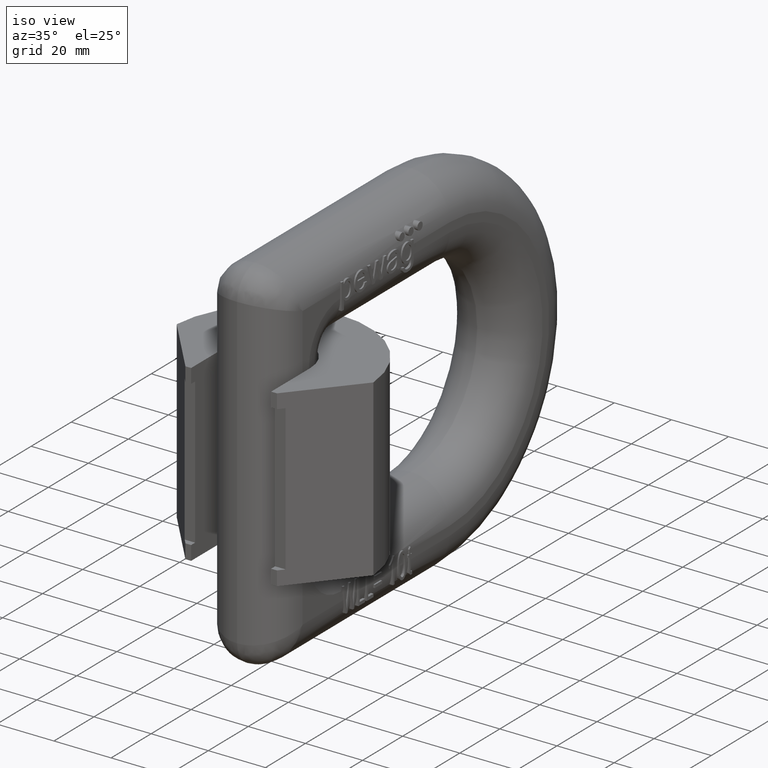
[diagram: clean part render]
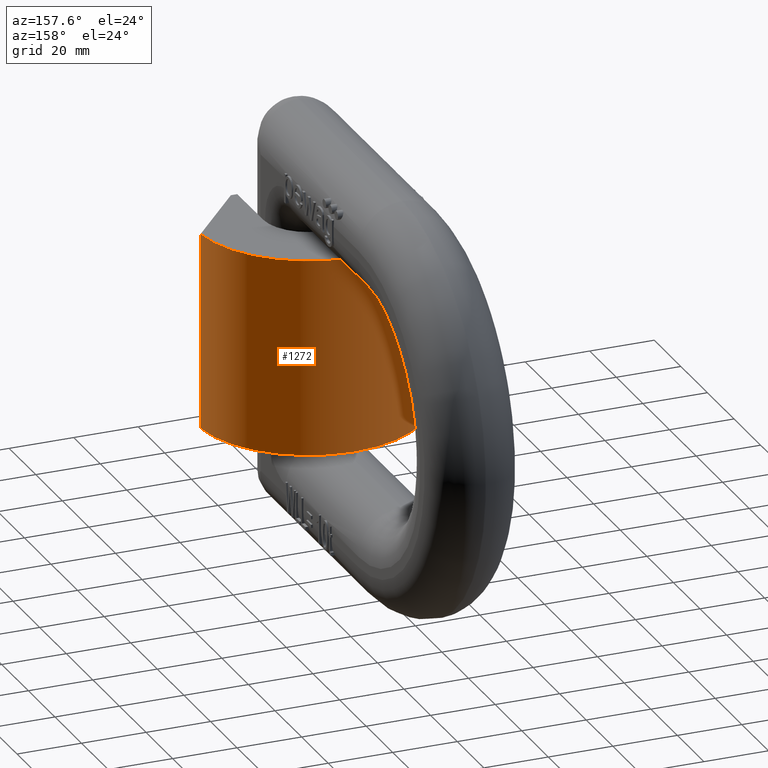
[diagram: tour spotlight — one face highlighted and labeled with its STEP entity id]
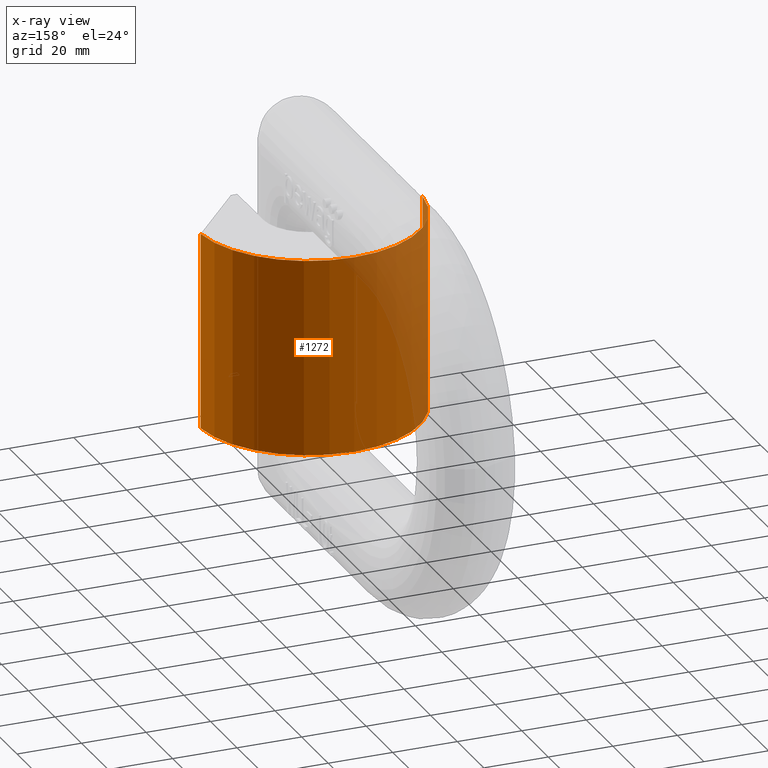
[diagram: x-ray of the same camera — body ghosted, this tour face saturated]
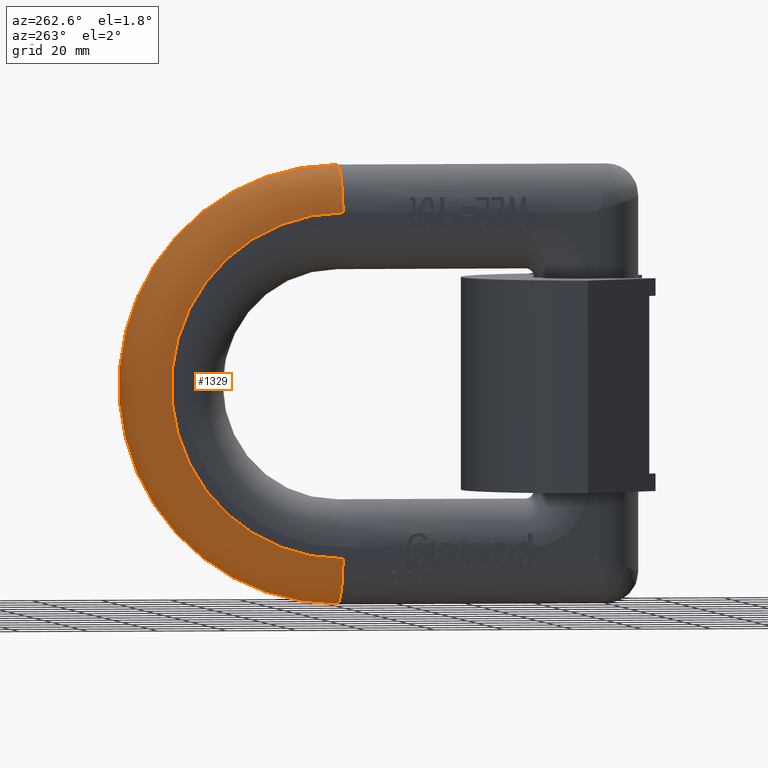
[diagram: tour spotlight — one face highlighted and labeled with its STEP entity id]
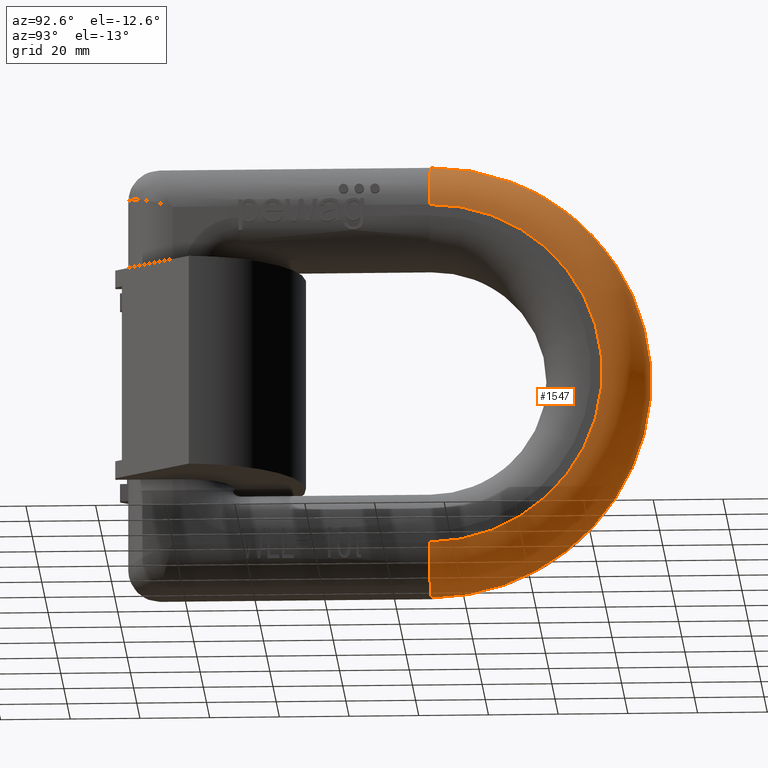
[diagram: tour spotlight — one face highlighted and labeled with its STEP entity id]
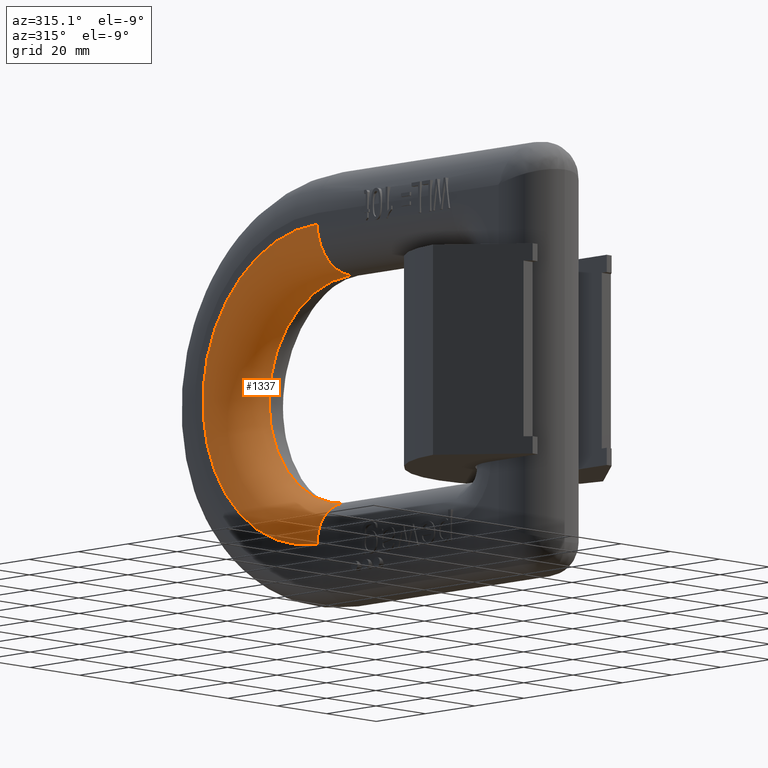
[diagram: tour spotlight — one face highlighted and labeled with its STEP entity id]
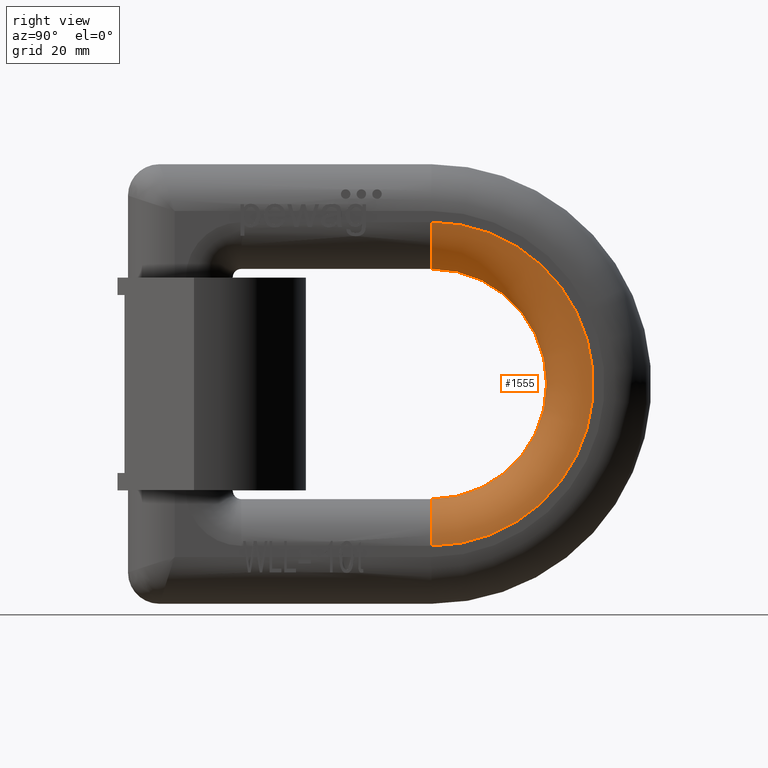
[diagram: tour spotlight — one face highlighted and labeled with its STEP entity id]
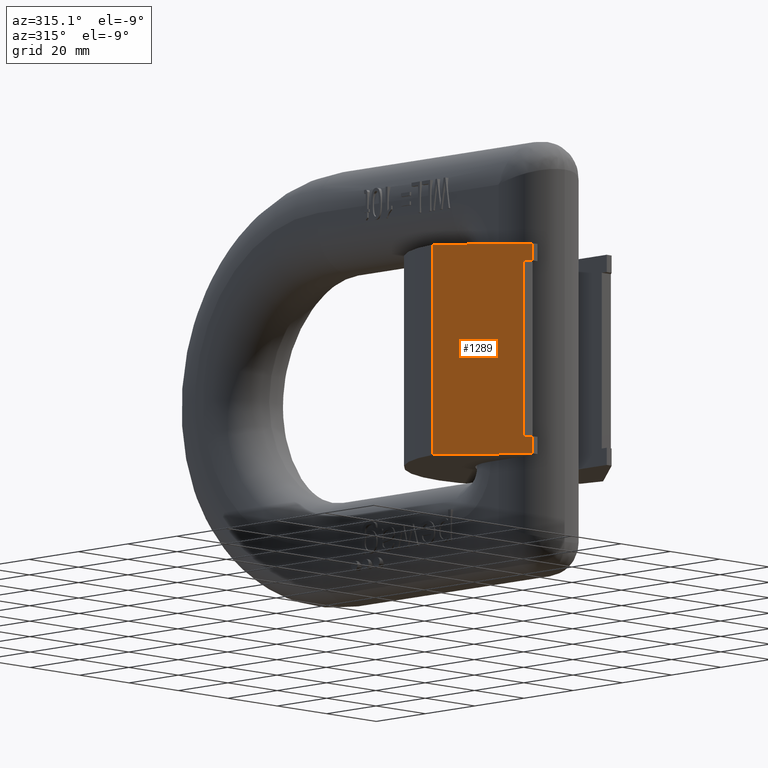
[diagram: tour spotlight — one face highlighted and labeled with its STEP entity id]
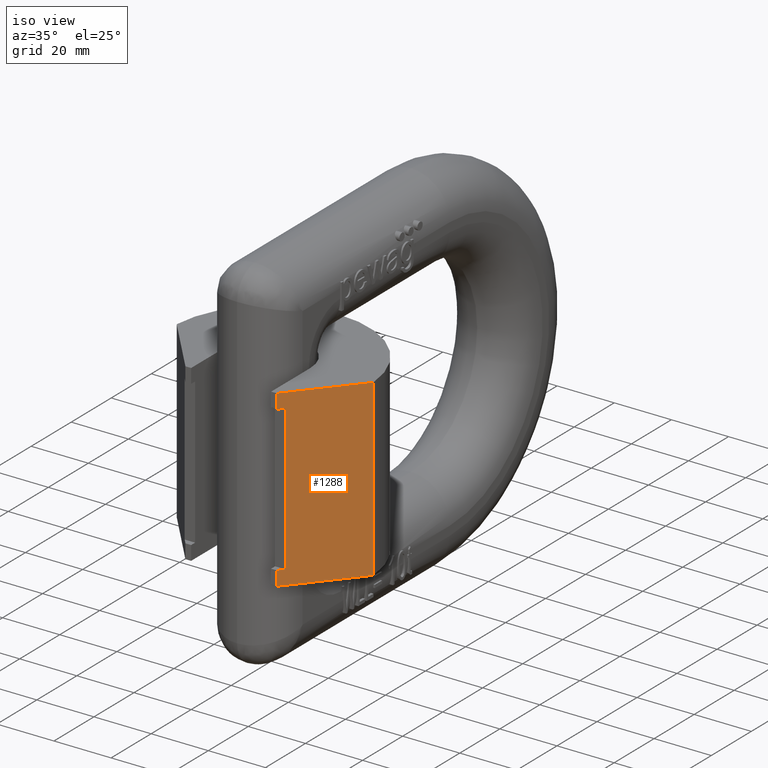
[diagram: tour spotlight — one face highlighted and labeled with its STEP entity id]
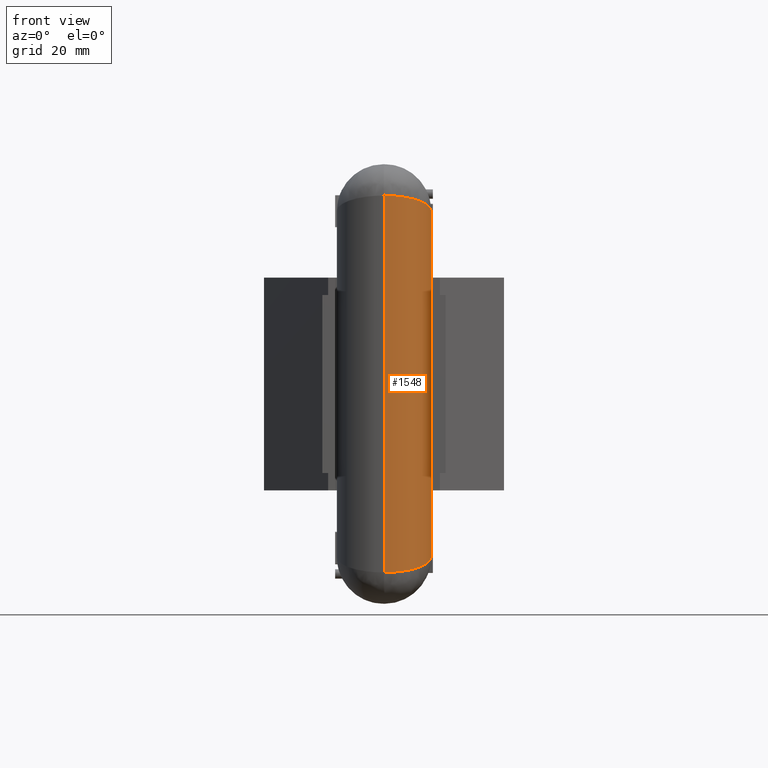
[diagram: tour spotlight — one face highlighted and labeled with its STEP entity id]
A machine part: a face-by-face anatomy tour. The part has 466 B-rep faces; the first image is the clean iso view, then the 8 largest visible faces are spotlighted one at a time (largest first), each with its STEP entity span.

Face 1 — auxiliary view, entity #1272. An x-ray twin of the same camera follows (body ghosted, this face saturated) — the face is partly hidden behind the body. In plain terms, the highlighted cylindrical surface (partial cylindrical patch) has radius 34.5 mm, axis along (0, 0, -1).
Definition (entity closure, byte-faithful):
#1272=ADVANCED_FACE('',(#1794),#1738,.T.);
#1738=CYLINDRICAL_SURFACE('',#8911,34.5);
#1794=FACE_OUTER_BOUND('',#2238,.T.);
#2238=EDGE_LOOP('',(#2818,#2819,#2820,#2821));
#2730=CIRCLE('',#8909,34.5);
#2731=CIRCLE('',#8910,34.5);
#2818=ORIENTED_EDGE('',*,*,#6274,.F.);
#2819=ORIENTED_EDGE('',*,*,#6275,.F.);
#2820=ORIENTED_EDGE('',*,*,#6276,.F.);
#2821=ORIENTED_EDGE('',*,*,#6277,.T.);
#5414=VERTEX_POINT('',#11025);
#5415=VERTEX_POINT('',#11026);
#5416=VERTEX_POINT('',#11028);
#5417=VERTEX_POINT('',#11030);
#6274=EDGE_CURVE('',#5414,#5415,#7572,.T.);
#6275=EDGE_CURVE('',#5416,#5414,#2730,.T.);
#6276=EDGE_CURVE('',#5417,#5416,#7573,.T.);
#6277=EDGE_CURVE('',#5417,#5415,#2731,.T.);
#7572=LINE('',#11024,#8164);
#7573=LINE('',#11029,#8165);
#8164=VECTOR('',#9367,1.);
#8165=VECTOR('',#9370,1.);
#8909=AXIS2_PLACEMENT_3D('',#11027,#9368,#9369);
#8910=AXIS2_PLACEMENT_3D('',#11031,#9371,#9372);
#8911=AXIS2_PLACEMENT_3D('',#11032,#9373,#9374);
#9367=DIRECTION('',(0.,0.,-1.));
#9368=DIRECTION('',(0.,0.,1.));
#9369=DIRECTION('',(1.,0.,0.));
#9370=DIRECTION('',(0.,0.,1.));
#9371=DIRECTION('',(0.,0.,1.));
#9372=DIRECTION('',(1.,0.,0.));
#9373=DIRECTION('',(0.,0.,-1.));
#9374=DIRECTION('',(-1.,0.,0.));
#11024=CARTESIAN_POINT('',(-34.4133144403458,21.9441336358489,30.5));
#11025=CARTESIAN_POINT('',(-34.4133144403458,21.9441336358489,30.5));
#11026=CARTESIAN_POINT('',(-34.4133144403458,21.9441336358489,-30.5));
#11027=CARTESIAN_POINT('',(0.,19.5,30.5));
#11028=CARTESIAN_POINT('',(34.4133144403458,21.9441336358489,30.5));
#11029=CARTESIAN_POINT('',(34.4133144403458,21.9441336358489,30.5));
#11030=CARTESIAN_POINT('',(34.4133144403458,21.9441336358489,-30.5));
#11031=CARTESIAN_POINT('',(0.,19.5,-30.5));
#11032=CARTESIAN_POINT('',(0.,19.5,30.5));

Face 2 — auxiliary view, entity #1329. In plain terms, the highlighted toroidal blend (fillet) surface has major radius 49.6 mm and minor (blend) radius 13.4 mm.
Definition (entity closure, byte-faithful):
#175=TOROIDAL_SURFACE('',#9024,49.6,13.4);
#1329=ADVANCED_FACE('',(#1849),#175,.T.);
#1849=FACE_OUTER_BOUND('',#2299,.T.);
#2299=EDGE_LOOP('',(#3213,#3214,#3215,#3216));
#2741=CIRCLE('',#8946,63.);
#2757=CIRCLE('',#8986,49.6);
#2762=CIRCLE('',#8998,13.4);
#2766=CIRCLE('',#9023,13.4);
#3213=ORIENTED_EDGE('',*,*,#6496,.T.);
#3214=ORIENTED_EDGE('',*,*,#6454,.F.);
#3215=ORIENTED_EDGE('',*,*,#6575,.F.);
#3216=ORIENTED_EDGE('',*,*,#6350,.F.);
#5465=VERTEX_POINT('',#11173);
#5467=VERTEX_POINT('',#11179);
#5554=VERTEX_POINT('',#11504);
#5555=VERTEX_POINT('',#11506);
#6350=EDGE_CURVE('',#5467,#5465,#2741,.T.);
#6454=EDGE_CURVE('',#5554,#5555,#2757,.T.);
#6496=EDGE_CURVE('',#5467,#5555,#2762,.T.);
#6575=EDGE_CURVE('',#5465,#5554,#2766,.T.);
#8946=AXIS2_PLACEMENT_3D('',#11180,#9506,#9507);
#8986=AXIS2_PLACEMENT_3D('',#11505,#9645,#9646);
#8998=AXIS2_PLACEMENT_3D('',#11787,#9682,#9683);
#9023=AXIS2_PLACEMENT_3D('',#12412,#9756,#9757);
#9024=AXIS2_PLACEMENT_3D('',#12413,#9758,#9759);
#9506=DIRECTION('',(1.,0.,0.));
#9507=DIRECTION('',(0.,0.,1.));
#9645=DIRECTION('',(-1.,0.,0.));
#9646=DIRECTION('',(0.,0.,1.));
#9682=DIRECTION('',(0.,1.,0.));
#9683=DIRECTION('',(0.,0.,1.));
#9756=DIRECTION('',(0.,-1.,0.));
#9757=DIRECTION('',(0.,0.,-1.));
#9758=DIRECTION('',(-1.,0.,0.));
#9759=DIRECTION('',(0.,0.,1.));
#11173=CARTESIAN_POINT('',(-0.0999999999999994,90.,63.));
#11179=CARTESIAN_POINT('',(-0.0999999999999994,90.,-63.));
#11180=CARTESIAN_POINT('',(-0.0999999999999994,90.,0.));
#11504=CARTESIAN_POINT('',(-13.5,90.,49.6));
#11505=CARTESIAN_POINT('',(-13.5,90.,0.));
#11506=CARTESIAN_POINT('',(-13.5,90.,-49.6));
#11787=CARTESIAN_POINT('',(-0.0999999999999994,90.,-49.6));
#12412=CARTESIAN_POINT('',(-0.0999999999999994,90.,49.6));
#12413=CARTESIAN_POINT('',(-0.0999999999999994,90.,0.));

Face 3 — auxiliary view, entity #1547. In plain terms, the highlighted toroidal blend (fillet) surface has major radius 49.6 mm and minor (blend) radius 13.4 mm.
Definition (entity closure, byte-faithful):
#179=TOROIDAL_SURFACE('',#9229,49.6,13.4);
#1547=ADVANCED_FACE('',(#2056),#179,.T.);
#2056=FACE_OUTER_BOUND('',#2530,.T.);
#2530=EDGE_LOOP('',(#4439,#4440,#4441,#4442));
#2740=CIRCLE('',#8945,63.);
#2793=CIRCLE('',#9191,49.6);
#2798=CIRCLE('',#9203,13.4);
#2802=CIRCLE('',#9228,13.4);
#4439=ORIENTED_EDGE('',*,*,#7103,.T.);
#4440=ORIENTED_EDGE('',*,*,#7061,.F.);
#4441=ORIENTED_EDGE('',*,*,#7182,.F.);
#4442=ORIENTED_EDGE('',*,*,#6348,.F.);
#5464=VERTEX_POINT('',#11171);
#5466=VERTEX_POINT('',#11177);
#5956=VERTEX_POINT('',#14893);
#5957=VERTEX_POINT('',#14895);
#6348=EDGE_CURVE('',#5464,#5466,#2740,.T.);
#7061=EDGE_CURVE('',#5956,#5957,#2793,.T.);
#7103=EDGE_CURVE('',#5464,#5957,#2798,.T.);
#7182=EDGE_CURVE('',#5466,#5956,#2802,.T.);
#8945=AXIS2_PLACEMENT_3D('',#11176,#9503,#9504);
#9191=AXIS2_PLACEMENT_3D('',#14894,#10393,#10394);
#9203=AXIS2_PLACEMENT_3D('',#15176,#10430,#10431);
#9228=AXIS2_PLACEMENT_3D('',#15801,#10504,#10505);
#9229=AXIS2_PLACEMENT_3D('',#15802,#10506,#10507);
#9503=DIRECTION('',(-1.,0.,-2.34291072916505E-15));
#9504=DIRECTION('',(2.34286624217056E-15,0.,-1.));
#10393=DIRECTION('',(1.,0.,2.34291072916505E-15));
#10394=DIRECTION('',(2.34327566311383E-15,0.,-1.));
#10430=DIRECTION('',(0.,1.,0.));
#10431=DIRECTION('',(2.3433735388516E-15,0.,-1.));
#10504=DIRECTION('',(0.,-1.,0.));
#10505=DIRECTION('',(-2.3433735388516E-15,0.,1.));
#10506=DIRECTION('',(1.,0.,2.34291072916505E-15));
#10507=DIRECTION('',(2.34286624217056E-15,0.,-1.));
#11171=CARTESIAN_POINT('',(0.0999999999998518,90.,63.));
#11176=CARTESIAN_POINT('',(0.0999999999999994,90.,2.34291072916503E-16));
#11177=CARTESIAN_POINT('',(0.100000000000147,90.,-63.));
#14893=CARTESIAN_POINT('',(13.5000000000001,90.,-49.6));
#14894=CARTESIAN_POINT('',(13.5,90.,3.16292948437282E-14));
#14895=CARTESIAN_POINT('',(13.4999999999999,90.,49.6));
#15176=CARTESIAN_POINT('',(0.0999999999998832,90.,49.6));
#15801=CARTESIAN_POINT('',(0.100000000000116,90.,-49.6));
#15802=CARTESIAN_POINT('',(0.0999999999999994,90.,2.34291072916503E-16));

Face 4 — auxiliary view, entity #1337. In plain terms, the highlighted toroidal blend (fillet) surface has major radius 46.4 mm and minor (blend) radius 13.4 mm.
Definition (entity closure, byte-faithful):
#178=TOROIDAL_SURFACE('',#9050,46.4,13.4);
#1337=ADVANCED_FACE('',(#1856),#178,.T.);
#1856=FACE_OUTER_BOUND('',#2308,.T.);
#2308=EDGE_LOOP('',(#3287,#3288,#3289,#3290));
#2737=CIRCLE('',#8937,33.);
#2755=CIRCLE('',#8974,13.4);
#2758=CIRCLE('',#8987,46.4);
#2764=CIRCLE('',#9003,13.4);
#3287=ORIENTED_EDGE('',*,*,#6505,.T.);
#3288=ORIENTED_EDGE('',*,*,#6334,.F.);
#3289=ORIENTED_EDGE('',*,*,#6410,.T.);
#3290=ORIENTED_EDGE('',*,*,#6458,.F.);
#5453=VERTEX_POINT('',#11140);
#5455=VERTEX_POINT('',#11146);
#5518=VERTEX_POINT('',#11345);
#5558=VERTEX_POINT('',#11519);
#6334=EDGE_CURVE('',#5455,#5453,#2737,.T.);
#6410=EDGE_CURVE('',#5455,#5518,#2755,.T.);
#6458=EDGE_CURVE('',#5558,#5518,#2758,.T.);
#6505=EDGE_CURVE('',#5558,#5453,#2764,.T.);
#8937=AXIS2_PLACEMENT_3D('',#11147,#9476,#9477);
#8974=AXIS2_PLACEMENT_3D('',#11346,#9594,#9595);
#8987=AXIS2_PLACEMENT_3D('',#11520,#9649,#9650);
#9003=AXIS2_PLACEMENT_3D('',#11940,#9694,#9695);
#9050=AXIS2_PLACEMENT_3D('',#12665,#9819,#9820);
#9476=DIRECTION('',(-1.,0.,0.));
#9477=DIRECTION('',(0.,0.,1.));
#9594=DIRECTION('',(0.,1.,0.));
#9595=DIRECTION('',(0.,0.,1.));
#9649=DIRECTION('',(1.,0.,0.));
#9650=DIRECTION('',(0.,0.,1.));
#9694=DIRECTION('',(0.,1.,0.));
#9695=DIRECTION('',(0.,0.,1.));
#9819=DIRECTION('',(-1.,0.,0.));
#9820=DIRECTION('',(0.,0.,1.));
#11140=CARTESIAN_POINT('',(-0.0999999999999994,90.,-33.));
#11146=CARTESIAN_POINT('',(-0.0999999999999994,90.,33.));
#11147=CARTESIAN_POINT('',(-0.0999999999999994,90.,0.));
#11345=CARTESIAN_POINT('',(-13.5,90.,46.4));
#11346=CARTESIAN_POINT('',(-0.0999999999999994,90.,46.4));
#11519=CARTESIAN_POINT('',(-13.5,90.,-46.4));
#11520=CARTESIAN_POINT('',(-13.5,90.,0.));
#11940=CARTESIAN_POINT('',(-0.0999999999999994,90.,-46.4));
#12665=CARTESIAN_POINT('',(-0.0999999999999994,90.,0.));

Face 5 — right view, entity #1555. In plain terms, the highlighted toroidal blend (fillet) surface has major radius 46.4 mm and minor (blend) radius 13.4 mm.
Definition (entity closure, byte-faithful):
#182=TOROIDAL_SURFACE('',#9255,46.4,13.4);
#1555=ADVANCED_FACE('',(#2063),#182,.T.);
#2063=FACE_OUTER_BOUND('',#2539,.T.);
#2539=EDGE_LOOP('',(#4513,#4514,#4515,#4516));
#2736=CIRCLE('',#8936,33.);
#2791=CIRCLE('',#9179,13.4);
#2794=CIRCLE('',#9192,46.4);
#2800=CIRCLE('',#9208,13.4);
#4513=ORIENTED_EDGE('',*,*,#7112,.T.);
#4514=ORIENTED_EDGE('',*,*,#6332,.F.);
#4515=ORIENTED_EDGE('',*,*,#7017,.T.);
#4516=ORIENTED_EDGE('',*,*,#7065,.F.);
#5452=VERTEX_POINT('',#11138);
#5454=VERTEX_POINT('',#11144);
#5920=VERTEX_POINT('',#14734);
#5960=VERTEX_POINT('',#14908);
#6332=EDGE_CURVE('',#5452,#5454,#2736,.T.);
#7017=EDGE_CURVE('',#5452,#5920,#2791,.T.);
#7065=EDGE_CURVE('',#5960,#5920,#2794,.T.);
#7112=EDGE_CURVE('',#5960,#5454,#2800,.T.);
#8936=AXIS2_PLACEMENT_3D('',#11143,#9473,#9474);
#9179=AXIS2_PLACEMENT_3D('',#14735,#10342,#10343);
#9192=AXIS2_PLACEMENT_3D('',#14909,#10397,#10398);
#9208=AXIS2_PLACEMENT_3D('',#15329,#10442,#10443);
#9255=AXIS2_PLACEMENT_3D('',#16054,#10567,#10568);
#9473=DIRECTION('',(1.,0.,2.34291072916505E-15));
#9474=DIRECTION('',(2.34294446743553E-15,0.,-1.));
#10342=DIRECTION('',(0.,1.,0.));
#10343=DIRECTION('',(2.3433735388516E-15,0.,-1.));
#10397=DIRECTION('',(-1.,0.,-2.34291072916505E-15));
#10398=DIRECTION('',(2.35533575402023E-15,0.,-1.));
#10442=DIRECTION('',(0.,1.,0.));
#10443=DIRECTION('',(2.3433735388516E-15,0.,-1.));
#10567=DIRECTION('',(1.,0.,2.34291072916505E-15));
#10568=DIRECTION('',(2.34291012942206E-15,0.,-1.));
#11138=CARTESIAN_POINT('',(0.100000000000077,90.,-33.));
#11143=CARTESIAN_POINT('',(0.0999999999999994,90.,2.34291072916503E-16));
#11144=CARTESIAN_POINT('',(0.0999999999999221,90.,33.));
#14734=CARTESIAN_POINT('',(13.5000000000001,90.,-46.4));
#14735=CARTESIAN_POINT('',(0.100000000000108,90.,-46.4));
#14908=CARTESIAN_POINT('',(13.4999999999999,90.,46.4));
#14909=CARTESIAN_POINT('',(13.5,90.,3.16292948437282E-14));
#15329=CARTESIAN_POINT('',(0.0999999999998907,90.,46.4));
#16054=CARTESIAN_POINT('',(0.0999999999999994,90.,2.34291072916503E-16));

Face 6 — auxiliary view, entity #1289. In plain terms, the highlighted planar face has unit normal (-0.766, -0.6428, 0).
Definition (entity closure, byte-faithful):
#1041=PLANE('',#8930);
#1289=ADVANCED_FACE('',(#1811),#1041,.T.);
#1811=FACE_OUTER_BOUND('',#2255,.T.);
#2255=EDGE_LOOP('',(#2906,#2907,#2908,#2909,#2910,#2911,#2912,#2913));
#2906=ORIENTED_EDGE('',*,*,#6278,.T.);
#2907=ORIENTED_EDGE('',*,*,#6274,.T.);
#2908=ORIENTED_EDGE('',*,*,#6286,.F.);
#2909=ORIENTED_EDGE('',*,*,#6316,.F.);
#2910=ORIENTED_EDGE('',*,*,#6299,.F.);
#2911=ORIENTED_EDGE('',*,*,#6293,.F.);
#2912=ORIENTED_EDGE('',*,*,#6296,.T.);
#2913=ORIENTED_EDGE('',*,*,#6318,.F.);
#5414=VERTEX_POINT('',#11025);
#5415=VERTEX_POINT('',#11026);
#5418=VERTEX_POINT('',#11034);
#5424=VERTEX_POINT('',#11048);
#5430=VERTEX_POINT('',#11062);
#5432=VERTEX_POINT('',#11065);
#5434=VERTEX_POINT('',#11071);
#5436=VERTEX_POINT('',#11077);
#6274=EDGE_CURVE('',#5414,#5415,#7572,.T.);
#6278=EDGE_CURVE('',#5418,#5414,#7574,.T.);
#6286=EDGE_CURVE('',#5424,#5415,#7581,.T.);
#6293=EDGE_CURVE('',#5430,#5432,#7587,.T.);
#6296=EDGE_CURVE('',#5430,#5434,#7590,.T.);
#6299=EDGE_CURVE('',#5432,#5436,#7593,.T.);
#6316=EDGE_CURVE('',#5436,#5424,#7610,.T.);
#6318=EDGE_CURVE('',#5418,#5434,#7612,.T.);
#7572=LINE('',#11024,#8164);
#7574=LINE('',#11033,#8166);
#7581=LINE('',#11050,#8173);
#7587=LINE('',#11064,#8179);
#7590=LINE('',#11070,#8182);
#7593=LINE('',#11076,#8185);
#7610=LINE('',#11109,#8202);
#7612=LINE('',#11112,#8204);
#8164=VECTOR('',#9367,1.);
#8166=VECTOR('',#9375,1.);
#8173=VECTOR('',#9386,1.);
#8179=VECTOR('',#9396,1.);
#8182=VECTOR('',#9401,1.);
#8185=VECTOR('',#9406,1.);
#8202=VECTOR('',#9435,1.);
#8204=VECTOR('',#9439,1.);
#8930=AXIS2_PLACEMENT_3D('',#11121,#9453,#9454);
#9367=DIRECTION('',(0.,0.,-1.));
#9375=DIRECTION('',(-0.64278760968654,0.766044443118978,0.));
#9386=DIRECTION('',(-0.64278760968654,0.766044443118978,0.));
#9396=DIRECTION('',(0.,0.,-1.));
#9401=DIRECTION('',(0.64278760968654,-0.766044443118978,0.));
#9406=DIRECTION('',(0.64278760968654,-0.766044443118978,0.));
#9435=DIRECTION('',(0.,0.,-1.));
#9439=DIRECTION('',(0.,0.,-1.));
#9453=DIRECTION('',(-0.766044443118978,-0.64278760968654,0.));
#9454=DIRECTION('',(0.64278760968654,-0.766044443118978,0.));
#11024=CARTESIAN_POINT('',(-34.4133144403458,21.9441336358489,30.5));
#11025=CARTESIAN_POINT('',(-34.4133144403458,21.9441336358489,30.5));
#11026=CARTESIAN_POINT('',(-34.4133144403458,21.9441336358489,-30.5));
#11033=CARTESIAN_POINT('',(-18.9910610132045,3.5646077081549,30.5));
#11034=CARTESIAN_POINT('',(-16.,1.54074395550979E-30,30.5));
#11048=CARTESIAN_POINT('',(-16.,1.54074395550979E-30,-30.5));
#11050=CARTESIAN_POINT('',(-18.9910610132045,3.5646077081549,-30.5));
#11062=CARTESIAN_POINT('',(-17.6781992623545,1.99999999999998,25.5));
#11064=CARTESIAN_POINT('',(-17.6781992623545,1.99999999999998,25.5));
#11065=CARTESIAN_POINT('',(-17.6781992623546,1.99999999999998,-25.5));
#11070=CARTESIAN_POINT('',(-9.38918542133544,-7.87846202409767,25.5));
#11071=CARTESIAN_POINT('',(-16.,1.54074395550979E-30,25.5));
#11076=CARTESIAN_POINT('',(-9.38918542133544,-7.87846202409767,-25.5));
#11077=CARTESIAN_POINT('',(-16.,-1.4717857671533E-17,-25.5));
#11109=CARTESIAN_POINT('',(-16.,1.54074395550979E-30,33.5500275));
#11112=CARTESIAN_POINT('',(-16.,1.54074395550979E-30,33.5500275));
#11121=CARTESIAN_POINT('',(-16.,0.,33.5500275));

Face 7 — iso view, entity #1288. In plain terms, the highlighted planar face has unit normal (0.766, -0.6428, 0).
Definition (entity closure, byte-faithful):
#1040=PLANE('',#8929);
#1288=ADVANCED_FACE('',(#1810),#1040,.T.);
#1810=FACE_OUTER_BOUND('',#2254,.T.);
#2254=EDGE_LOOP('',(#2898,#2899,#2900,#2901,#2902,#2903,#2904,#2905));
#2898=ORIENTED_EDGE('',*,*,#6284,.T.);
#2899=ORIENTED_EDGE('',*,*,#6305,.T.);
#2900=ORIENTED_EDGE('',*,*,#6311,.T.);
#2901=ORIENTED_EDGE('',*,*,#6314,.F.);
#2902=ORIENTED_EDGE('',*,*,#6308,.F.);
#2903=ORIENTED_EDGE('',*,*,#6302,.T.);
#2904=ORIENTED_EDGE('',*,*,#6287,.F.);
#2905=ORIENTED_EDGE('',*,*,#6276,.T.);
#5416=VERTEX_POINT('',#11028);
#5417=VERTEX_POINT('',#11030);
#5423=VERTEX_POINT('',#11044);
#5426=VERTEX_POINT('',#11052);
#5438=VERTEX_POINT('',#11083);
#5440=VERTEX_POINT('',#11089);
#5442=VERTEX_POINT('',#11095);
#5444=VERTEX_POINT('',#11101);
#6276=EDGE_CURVE('',#5417,#5416,#7573,.T.);
#6284=EDGE_CURVE('',#5416,#5423,#7579,.T.);
#6287=EDGE_CURVE('',#5417,#5426,#7582,.T.);
#6302=EDGE_CURVE('',#5438,#5426,#7596,.T.);
#6305=EDGE_CURVE('',#5423,#5440,#7599,.T.);
#6308=EDGE_CURVE('',#5438,#5442,#7602,.T.);
#6311=EDGE_CURVE('',#5440,#5444,#7605,.T.);
#6314=EDGE_CURVE('',#5442,#5444,#7608,.T.);
#7573=LINE('',#11029,#8165);
#7579=LINE('',#11045,#8171);
#7582=LINE('',#11051,#8174);
#7596=LINE('',#11082,#8188);
#7599=LINE('',#11088,#8191);
#7602=LINE('',#11094,#8194);
#7605=LINE('',#11100,#8197);
#7608=LINE('',#11106,#8200);
#8165=VECTOR('',#9370,1.);
#8171=VECTOR('',#9382,1.);
#8174=VECTOR('',#9387,1.);
#8188=VECTOR('',#9411,1.);
#8191=VECTOR('',#9416,1.);
#8194=VECTOR('',#9421,1.);
#8197=VECTOR('',#9426,1.);
#8200=VECTOR('',#9431,1.);
#8929=AXIS2_PLACEMENT_3D('',#11120,#9451,#9452);
#9370=DIRECTION('',(0.,0.,1.));
#9382=DIRECTION('',(-0.64278760968654,-0.766044443118978,0.));
#9387=DIRECTION('',(-0.64278760968654,-0.766044443118978,0.));
#9411=DIRECTION('',(0.,0.,-1.));
#9416=DIRECTION('',(0.,0.,-1.));
#9421=DIRECTION('',(0.64278760968654,0.766044443118978,0.));
#9426=DIRECTION('',(0.64278760968654,0.766044443118978,0.));
#9431=DIRECTION('',(0.,0.,1.));
#9451=DIRECTION('',(0.766044443118978,-0.64278760968654,0.));
#9452=DIRECTION('',(0.64278760968654,0.766044443118978,0.));
#11028=CARTESIAN_POINT('',(34.4133144403458,21.9441336358489,30.5));
#11029=CARTESIAN_POINT('',(34.4133144403458,21.9441336358489,30.5));
#11030=CARTESIAN_POINT('',(34.4133144403458,21.9441336358489,-30.5));
#11044=CARTESIAN_POINT('',(16.,0.,30.5));
#11045=CARTESIAN_POINT('',(18.9910610132045,3.5646077081549,30.5));
#11051=CARTESIAN_POINT('',(18.9910610132045,3.5646077081549,-30.5));
#11052=CARTESIAN_POINT('',(16.,0.,-30.5));
#11082=CARTESIAN_POINT('',(16.,0.,33.5500275));
#11083=CARTESIAN_POINT('',(16.,0.,-25.5));
#11088=CARTESIAN_POINT('',(16.,0.,33.5500275));
#11089=CARTESIAN_POINT('',(16.,0.,25.5));
#11094=CARTESIAN_POINT('',(9.38918542133544,-7.87846202409767,-25.5));
#11095=CARTESIAN_POINT('',(17.6781992623546,1.99999999999999,-25.5));
#11100=CARTESIAN_POINT('',(9.38918542133544,-7.87846202409767,25.5));
#11101=CARTESIAN_POINT('',(17.6781992623546,1.99999999999999,25.5));
#11106=CARTESIAN_POINT('',(17.6781992623546,1.99999999999999,25.5));
#11120=CARTESIAN_POINT('',(34.5,22.0474414629929,33.5500275));

Face 8 — front view, entity #1548. In plain terms, the highlighted cylindrical surface (partial cylindrical patch) has radius 13.4 mm, axis along (-0, 0, 1).
Definition (entity closure, byte-faithful):
#285=ELLIPSE('',#9227,14.1039001698112,13.4);
#286=ELLIPSE('',#9230,14.1039001698112,13.4);
#1548=ADVANCED_FACE('',(#2057),#1779,.T.);
#1779=CYLINDRICAL_SURFACE('',#9231,13.4);
#2057=FACE_OUTER_BOUND('',#2531,.T.);
#2531=EDGE_LOOP('',(#4443,#4444,#4445,#4446));
#4443=ORIENTED_EDGE('',*,*,#7181,.T.);
#4444=ORIENTED_EDGE('',*,*,#6339,.F.);
#4445=ORIENTED_EDGE('',*,*,#7183,.F.);
#4446=ORIENTED_EDGE('',*,*,#6972,.F.);
#5459=VERTEX_POINT('',#11157);
#5460=VERTEX_POINT('',#11159);
#5879=VERTEX_POINT('',#14597);
#5880=VERTEX_POINT('',#14599);
#6339=EDGE_CURVE('',#5459,#5460,#7629,.T.);
#6972=EDGE_CURVE('',#5879,#5880,#7907,.T.);
#7181=EDGE_CURVE('',#5879,#5460,#285,.T.);
#7183=EDGE_CURVE('',#5880,#5459,#286,.T.);
#7629=LINE('',#11158,#8221);
#7907=LINE('',#14598,#8575);
#8221=VECTOR('',#9486,1.);
#8575=VECTOR('',#10284,1.);
#9227=AXIS2_PLACEMENT_3D('',#15758,#10502,#10503);
#9230=AXIS2_PLACEMENT_3D('',#15803,#10508,#10509);
#9231=AXIS2_PLACEMENT_3D('',#15804,#10510,#10511);
#9486=DIRECTION('',(-2.34291072916505E-15,0.,1.));
#10284=DIRECTION('',(2.34291072916505E-15,0.,-1.));
#10502=DIRECTION('',(2.22598028863047E-15,-0.311970444134171,-0.950091807135883));
#10503=DIRECTION('',(-7.30918900744334E-16,-0.950091807135883,0.311970444134171));
#10508=DIRECTION('',(2.22598028863047E-15,0.311970444134171,-0.950091807135883));
#10509=DIRECTION('',(7.30918900744334E-16,-0.950091807135883,-0.311970444134171));
#10510=DIRECTION('',(-2.34291072916505E-15,0.,1.));
#10511=DIRECTION('',(1.,0.,2.58913951638329E-15));
#11157=CARTESIAN_POINT('',(0.100000000000126,3.00000000000001,-54.));
#11158=CARTESIAN_POINT('',(0.0999999999998729,3.00000000000001,54.));
#11159=CARTESIAN_POINT('',(0.0999999999998729,3.00000000000001,54.));
#14597=CARTESIAN_POINT('',(13.4999999999999,16.4,49.6));
#14598=CARTESIAN_POINT('',(13.5000000000001,16.4,-54.));
#14599=CARTESIAN_POINT('',(13.5000000000001,16.4,-49.6));
#15758=CARTESIAN_POINT('',(0.0999999999998832,16.4,49.6));
#15803=CARTESIAN_POINT('',(0.100000000000116,16.4,-49.6));
#15804=CARTESIAN_POINT('',(0.100000000000126,16.4,-54.));